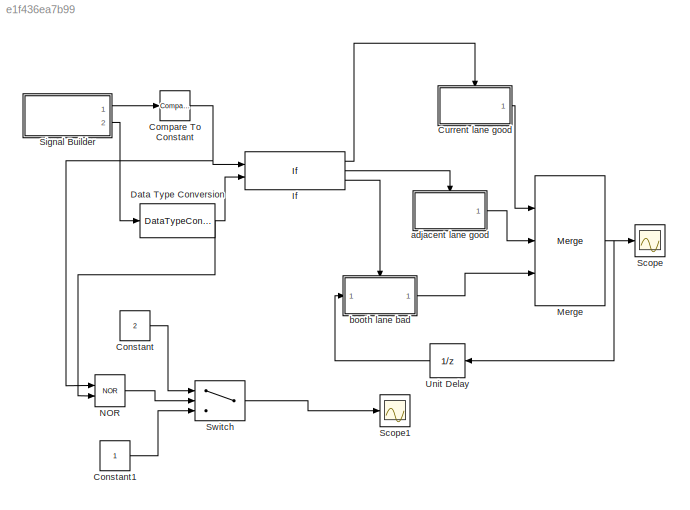
MODEL slx_e1f436ea7b99
KIND model
CONFIG AbsTol = auto
CONFIG EnableMultiTasking = off
CONFIG FixedStep = auto
CONFIG MaxStep = auto
CONFIG MinStep = auto
CONFIG RelTol = 1e-3
CONFIG SampleTimeConstraint = Unconstrained
CONFIG Solver = VariableStepAuto
CONFIG SolverName = VariableStepAuto
CONFIG StartTime = 0.0
CONFIG StopTime = 10.0
BLOCK [Reference] Compare To Constant  REF=simulink/Logic and Bit
Operations/Compare
To Constant
  Ports = [1, 1]
  SourceBlock = simulink/Logic and Bit\nOperations/Compare\nTo Constant
  SourceProductBaseCode = SL
  SourceType = Compare To Constant
BLOCK [Constant] Constant
  Value = 2
BLOCK [Constant] Constant1
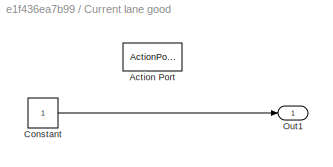
BLOCK [SubSystem] Current lane good
  Ports = [0, 1, 0, 0, 0, 0, 0, 1]
  RequestExecContextInheritance = off
  TreatAsAtomicUnit = on
BLOCK [ActionPort] Current lane good/Action Port
  ActionPortLabel = if(u1~=0)
BLOCK [Constant] Current lane good/Constant
BLOCK [Outport] Current lane good/Out1
BLOCK [DataTypeConversion] Data Type Conversion
  OutDataTypeStr = boolean
  RndMeth = Floor
  SaturateOnIntegerOverflow = off
BLOCK [If] If
  ElseIfExpressions = u2~=1
  IfExpression = u1~=0
  NumInputs = 2
  Ports = [2, 3]
BLOCK [Merge] Merge
  Inputs = 3
  Ports = [3, 1]
BLOCK [Logic] NOR
  AllPortsSameDT = off
  IconShape = distinctive
  Operator = NOR
  OutDataTypeStr = boolean
  Ports = [2, 1]
BLOCK [Scope] Scope
  Floating = off
  NumInputPorts = 1
  Ports = [1]
  ScopeSpecificationString = Simulink.scopes.TimeScopeBlockCfg('CurrentConfiguration', extmgr.ConfigurationSet(extmgr.Configuration('Core','General UI',true),extmgr.Configuration('Core','Source UI',true),extmgr.Configuration('Sources','WiredSimulink',true),extmgr.Configuration('Visuals','Time Domain',true,'SerializedDisplays',{struct('MinYLimReal','0.875','MaxYLimReal','2.125','YLabelReal','','MinYLimMag','0.875','MaxYLimMag'...<+1335ch>
BLOCK [Scope] Scope1
  Floating = off
  NumInputPorts = 1
  Ports = [1]
  ScopeSpecificationString = Simulink.scopes.TimeScopeBlockCfg('CurrentConfiguration', extmgr.ConfigurationSet(extmgr.Configuration('Core','General UI',true),extmgr.Configuration('Core','Source UI',true),extmgr.Configuration('Sources','WiredSimulink',true,'DataLoggingVariableName','ScopeData1'),extmgr.Configuration('Visuals','Time Domain',true,'SerializedDisplays',{struct('MinYLimReal','0.875','MaxYLimReal','2.125','YLabelRea...<+1347ch>
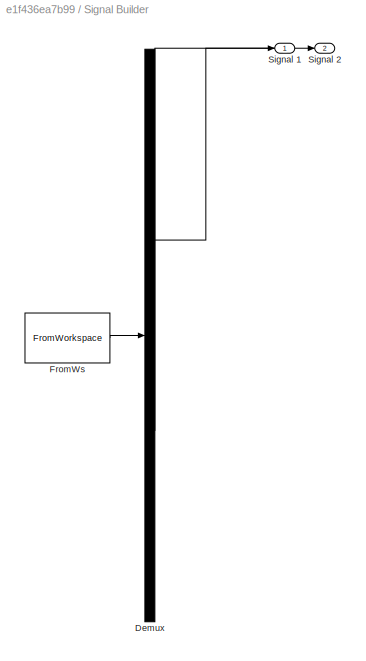
BLOCK [SubSystem] Signal Builder
  ClipboardFcn = sigbuilder_block('clipboard');
  CloseFcn = sigbuilder_block('close');
  ContinueFcn = sigbuilder_block('continue');
  CopyFcn = sigbuilder_block('copy');
  DeleteFcn = sigbuilder_block('delete');
  LoadFcn = sigbuilder_block('load');
  MaskHideContents = on
  ModelCloseFcn = sigbuilder_block('modelClose');
  NameChangeFcn = sigbuilder_block('namechange');
  OpenFcn = sigbuilder_block('open',[97.5 51 550.5 359.25 ]);
  PauseFcn = sigbuilder_block('pause');
  Ports = [0, 2]
  PreSaveFcn = sigbuilder_block('preSave');
  RequestExecContextInheritance = off
  StartFcn = sigbuilder_block('start');
  StopFcn = sigbuilder_block('stop');
  Tag = STV Subsys
BLOCK [Demux] Signal Builder/Demux
  DisplayOption = none
  Outputs = 2
  Ports = [1, 2]
  Tag = STV Demux
BLOCK [FromWorkspace] Signal Builder/FromWs
  Tag = STV FromWs
  VariableName = tuvar
BLOCK [Outport] Signal Builder/Signal 1
  Tag = STV Outport
BLOCK [Outport] Signal Builder/Signal 2
  Port = 2
  Tag = STV Outport
BLOCK [Switch] Switch
  Criteria = u2 > Threshold
  InputSameDT = off
  SaturateOnIntegerOverflow = off
BLOCK [UnitDelay] Unit Delay
  HasFrameUpgradeWarning = on
  SampleTime = -1
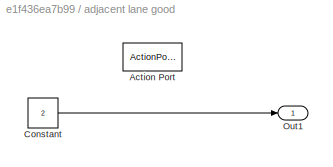
BLOCK [SubSystem] adjacent lane good
  Ports = [0, 1, 0, 0, 0, 0, 0, 1]
  RequestExecContextInheritance = off
  TreatAsAtomicUnit = on
BLOCK [ActionPort] adjacent lane good/Action Port
  ActionPortLabel = elseif(u2~=1)
BLOCK [Constant] adjacent lane good/Constant
  Value = 2
BLOCK [Outport] adjacent lane good/Out1
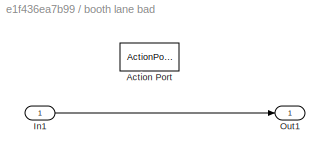
BLOCK [SubSystem] booth lane bad
  Ports = [1, 1, 0, 0, 0, 0, 0, 1]
  RequestExecContextInheritance = off
  TreatAsAtomicUnit = on
BLOCK [ActionPort] booth lane bad/Action Port
  ActionPortLabel = else
BLOCK [Inport] booth lane bad/In1
BLOCK [Outport] booth lane bad/Out1
NET Compare To Constant:1 -> If:1, NOR:1
LINE Constant1:1 -> Switch:3
LINE Constant:1 -> Switch:1
LINE Current lane good/Constant:1 -> Current lane good/Out1:1
LINE Current lane good:1 -> Merge:1
NET Data Type Conversion:1 -> If:2, NOR:2
LINE If:1 -> Current lane good:ifaction
LINE If:2 -> adjacent lane good:ifaction
LINE If:3 -> booth lane bad:ifaction
NET Merge:1 -> Scope:1, Unit Delay:1
LINE NOR:1 -> Switch:2
LINE Signal Builder:1 -> Compare To Constant:1
LINE Signal Builder:2 -> Data Type Conversion:1
LINE Switch:1 -> Scope1:1
LINE Unit Delay:1 -> booth lane bad:1
LINE adjacent lane good/Constant:1 -> adjacent lane good/Out1:1
LINE adjacent lane good:1 -> Merge:2
LINE booth lane bad/In1:1 -> booth lane bad/Out1:1
LINE booth lane bad:1 -> Merge:3
note: NET lines group one-source signal fan-out (src -> all destinations, sorted); 1:1 wires keep LINE
